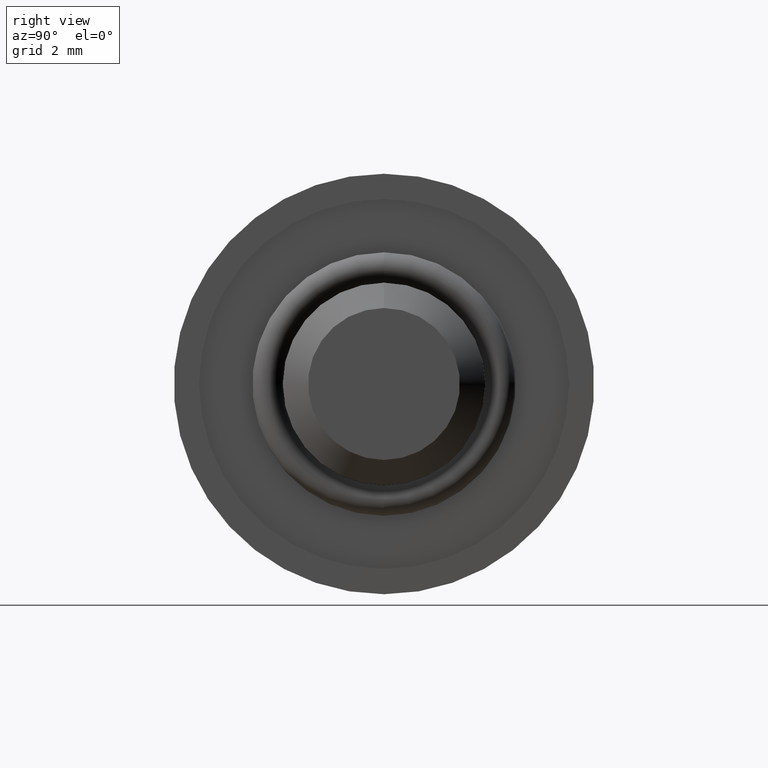
[diagram: clean part render]
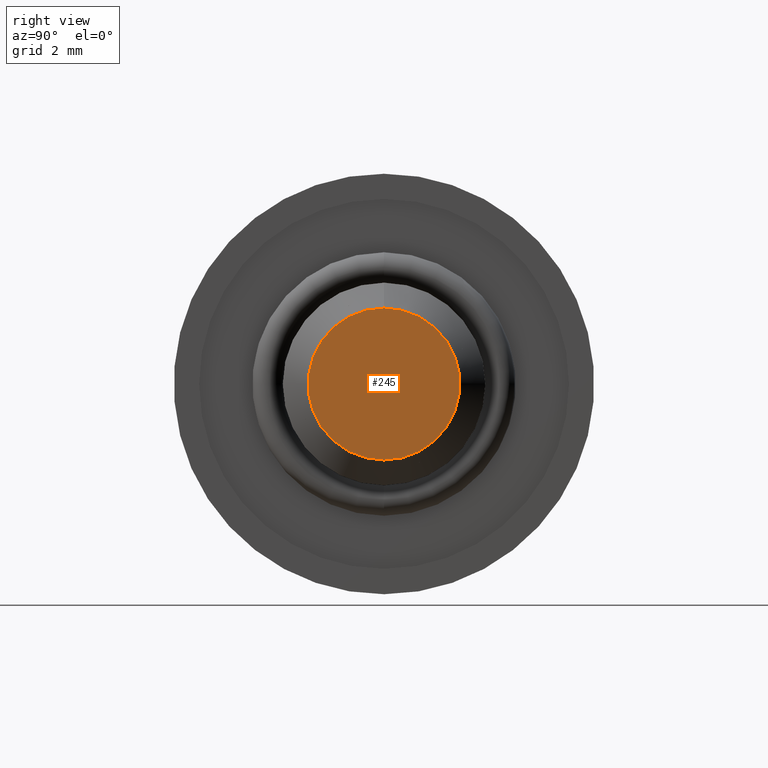
[diagram: same view with one face highlighted and labeled with its STEP entity id]
A machine part, right view. The second image highlights one B-rep face of the part: STEP entity #245.
In plain terms, the highlighted planar face has unit normal (1, 0, 0).
Its self-contained STEP definition (entity closure, byte-faithful):
#57 = CARTESIAN_POINT ( 'NONE',  ( 6.000000000000000000, 0.0000000000000000000, 0.0000000000000000000 ) ) ;
#139 = ORIENTED_EDGE ( 'NONE', *, *, #1118, .T. ) ;
#176 = VERTEX_POINT ( 'NONE', #617 ) ;
#178 = EDGE_LOOP ( 'NONE', ( #139, #743 ) ) ;
#200 = PLANE ( 'NONE',  #279 ) ;
#245 = ADVANCED_FACE ( 'NONE', ( #1115 ), #200, .T. ) ;
#279 = AXIS2_PLACEMENT_3D ( 'NONE', #467, #1100, #893 ) ;
#394 = CIRCLE ( 'NONE', #861, 1.499999999999999600 ) ;
#467 = CARTESIAN_POINT ( 'NONE',  ( 6.000000000000000000, 0.0000000000000000000, 0.0000000000000000000 ) ) ;
#582 = AXIS2_PLACEMENT_3D ( 'NONE', #57, #1074, #983 ) ;
#588 = DIRECTION ( 'NONE',  ( 0.0000000000000000000, 0.0000000000000000000, -1.000000000000000000 ) ) ;
#617 = CARTESIAN_POINT ( 'NONE',  ( 6.000000000000000000, 2.143131898507867800E-016, -1.499999999999999600 ) ) ;
#743 = ORIENTED_EDGE ( 'NONE', *, *, #1154, .T. ) ;
#825 = CARTESIAN_POINT ( 'NONE',  ( 6.000000000000000000, 0.0000000000000000000, 1.499999999999999600 ) ) ;
#861 = AXIS2_PLACEMENT_3D ( 'NONE', #891, #1184, #588 ) ;
#891 = CARTESIAN_POINT ( 'NONE',  ( 6.000000000000000000, 0.0000000000000000000, 0.0000000000000000000 ) ) ;
#893 = DIRECTION ( 'NONE',  ( 0.0000000000000000000, 0.0000000000000000000, -1.000000000000000000 ) ) ;
#911 = VERTEX_POINT ( 'NONE', #825 ) ;
#982 = CIRCLE ( 'NONE', #582, 1.499999999999999600 ) ;
#983 = DIRECTION ( 'NONE',  ( 0.0000000000000000000, 0.0000000000000000000, -1.000000000000000000 ) ) ;
#1074 = DIRECTION ( 'NONE',  ( 1.000000000000000000, 0.0000000000000000000, 0.0000000000000000000 ) ) ;
#1100 = DIRECTION ( 'NONE',  ( 1.000000000000000000, 0.0000000000000000000, 0.0000000000000000000 ) ) ;
#1115 = FACE_OUTER_BOUND ( 'NONE', #178, .T. ) ;
#1118 = EDGE_CURVE ( 'NONE', #911, #176, #982, .T. ) ;
#1154 = EDGE_CURVE ( 'NONE', #176, #911, #394, .T. ) ;
#1184 = DIRECTION ( 'NONE',  ( 1.000000000000000000, 0.0000000000000000000, 0.0000000000000000000 ) ) ;